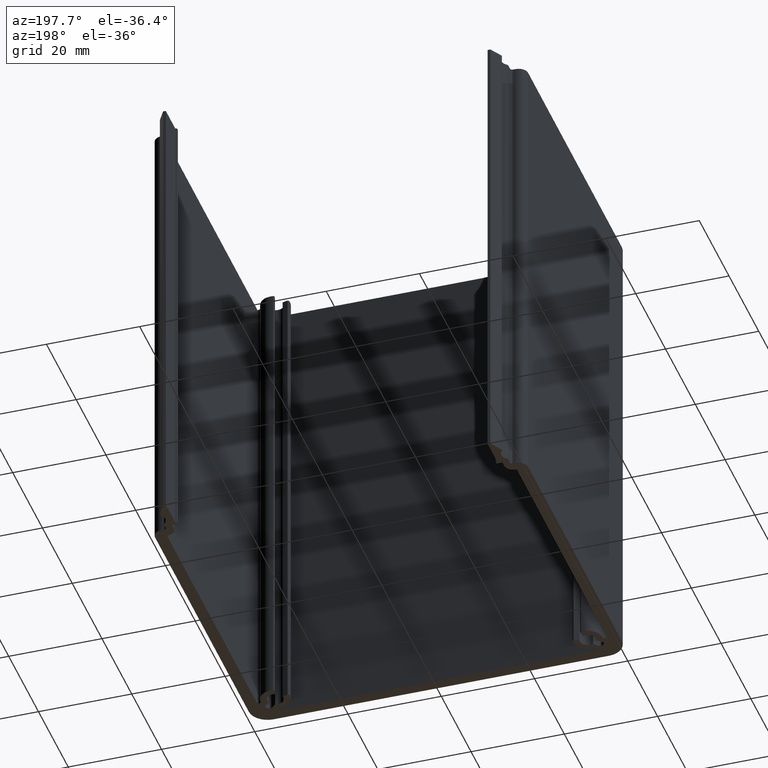
[diagram: clean part render]
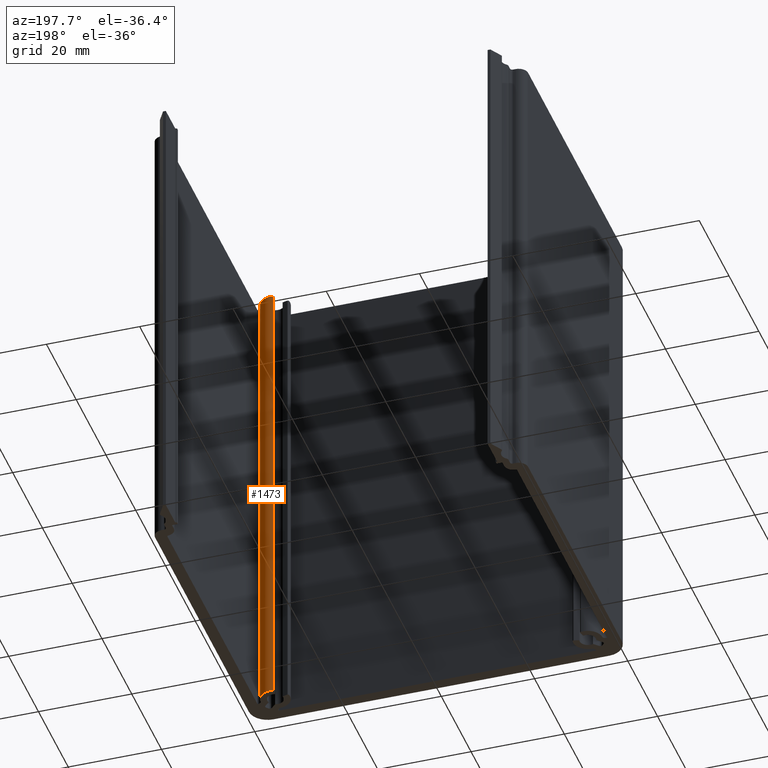
[diagram: same view with one face highlighted and labeled with its STEP entity id]
A machine part, auxiliary view. The second image highlights one B-rep face of the part: STEP entity #1473.
In plain terms, the highlighted cylindrical surface (edge-blend (fillet) strip) has radius 3.15 mm, axis along (0, 0, 1).
Its self-contained STEP definition (entity closure, byte-faithful):
#99=FACE_OUTER_BOUND('',#175,.T.);
#175=EDGE_LOOP('',(#1125,#1126,#1127,#1128));
#295=LINE('',#2370,#445);
#296=LINE('',#2376,#446);
#445=VECTOR('',#1921,100.);
#446=VECTOR('',#1928,100.);
#551=CIRCLE('',#1596,3.1499999898949);
#552=CIRCLE('',#1597,3.1499999898949);
#667=VERTEX_POINT('',#2366);
#668=VERTEX_POINT('',#2368);
#669=VERTEX_POINT('',#2372);
#670=VERTEX_POINT('',#2374);
#859=EDGE_CURVE('',#667,#668,#295,.T.);
#860=EDGE_CURVE('',#669,#667,#551,.T.);
#861=EDGE_CURVE('',#670,#668,#552,.T.);
#862=EDGE_CURVE('',#669,#670,#296,.T.);
#1125=ORIENTED_EDGE('',*,*,#860,.T.);
#1126=ORIENTED_EDGE('',*,*,#859,.T.);
#1127=ORIENTED_EDGE('',*,*,#861,.F.);
#1128=ORIENTED_EDGE('',*,*,#862,.F.);
#1415=CYLINDRICAL_SURFACE('',#1595,3.1499999898949);
#1473=ADVANCED_FACE('',(#99),#1415,.T.);
#1595=AXIS2_PLACEMENT_3D('',#2371,#1922,#1923);
#1596=AXIS2_PLACEMENT_3D('',#2373,#1924,#1925);
#1597=AXIS2_PLACEMENT_3D('',#2375,#1926,#1927);
#1921=DIRECTION('',(0.,0.,1.));
#1922=DIRECTION('center_axis',(0.,0.,1.));
#1923=DIRECTION('ref_axis',(0.999416393339626,-0.0341595187907295,0.));
#1924=DIRECTION('center_axis',(0.,0.,1.));
#1925=DIRECTION('ref_axis',(0.999416393339626,-0.0341595187907295,0.));
#1926=DIRECTION('center_axis',(0.,0.,1.));
#1927=DIRECTION('ref_axis',(0.999416393339626,-0.0341595187907295,0.));
#1928=DIRECTION('',(0.,0.,1.));
#2366=CARTESIAN_POINT('',(33.0095300555735,9.61158145395549,0.));
#2368=CARTESIAN_POINT('',(33.0095300555735,9.61158145395549,100.));
#2370=CARTESIAN_POINT('',(33.0095300555735,9.61158145395549,0.));
#2371=CARTESIAN_POINT('Origin',(33.5000000066146,6.49999999696877,0.));
#2372=CARTESIAN_POINT('',(36.6481616355352,6.39239751312315,0.));
#2373=CARTESIAN_POINT('Origin',(33.5000000066146,6.49999999696877,0.));
#2374=CARTESIAN_POINT('',(36.6481616355352,6.39239751312315,100.));
#2375=CARTESIAN_POINT('Origin',(33.5000000066146,6.49999999696877,100.));
#2376=CARTESIAN_POINT('',(36.6481616355352,6.39239751312315,0.));